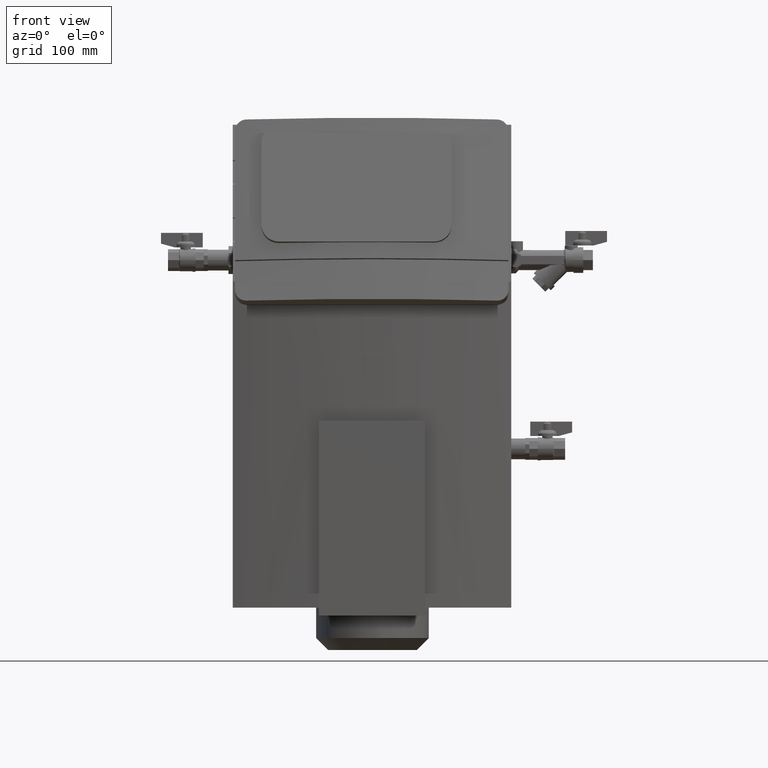
[diagram: clean part render]
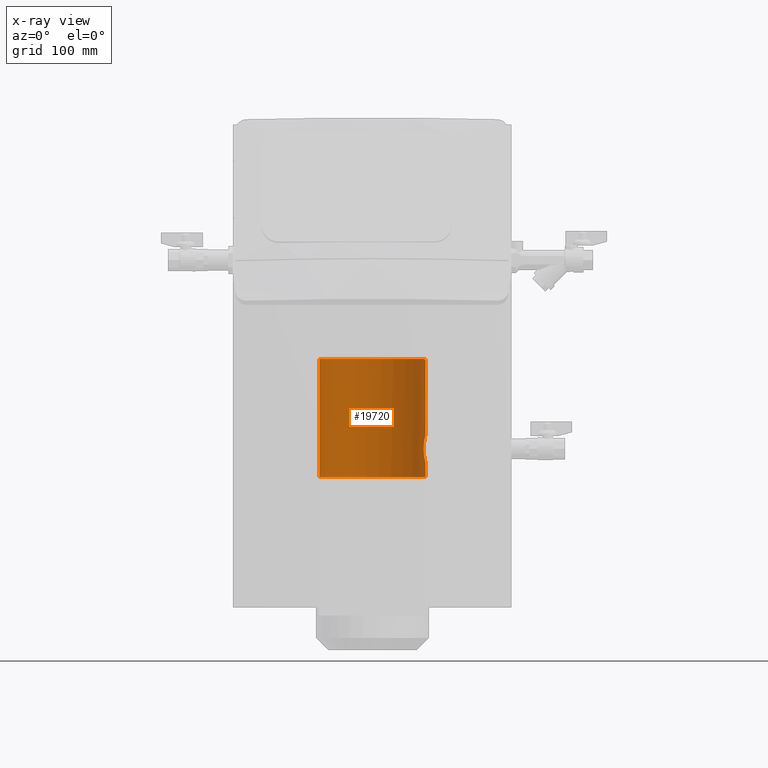
[diagram: x-ray — body ghosted, one internal face saturated and labeled with its STEP entity id]
A machine part, front view, then the same camera in x-ray: the body is ghosted and one INTERNAL B-rep face — a face not visible from any outside direction — is saturated and labeled: STEP entity #19720.
In plain terms, the highlighted cylindrical surface (partial cylindrical patch) has radius 66 mm, axis along (0, 0, 1).
Its self-contained STEP definition (entity closure, byte-faithful):
#19606=CARTESIAN_POINT('',(0.638000047148353,-114.99999999997141,-402.68999999873597));
#19607=DIRECTION('',(1.124746E-032,1.836910E-016,1.0));
#19608=DIRECTION('',(-1.0,0.0,0.0));
#19609=AXIS2_PLACEMENT_3D('',#19606,#19607,#19608);
#19610=CYLINDRICAL_SURFACE('',#19609,66.0);
#19611=CARTESIAN_POINT('',(-65.361999952851647,-114.99999999997138,-281.05857257039327));
#19612=VERTEX_POINT('',#19611);
#19613=CARTESIAN_POINT('',(-65.361999952851647,-114.99999999997141,-427.68999999973596));
#19614=VERTEX_POINT('',#19613);
#19615=CARTESIAN_POINT('',(-65.361999952851647,-114.99999999997138,-281.05857257039327));
#19616=DIRECTION('',(0.0,0.0,-1.0));
#19617=VECTOR('',#19616,146.63142742934269);
#19618=LINE('',#19615,#19617);
#19619=EDGE_CURVE('',#19612,#19614,#19618,.T.);
#19620=ORIENTED_EDGE('',*,*,#19619,.F.);
#19621=CARTESIAN_POINT('',(65.537923005500261,-102.99999999997141,-281.05857257039327));
#19622=VERTEX_POINT('',#19621);
#19623=CARTESIAN_POINT('',(0.638000047148353,-114.99999999997141,-281.05857257039327));
#19624=DIRECTION('',(0.0,0.0,1.0));
#19625=DIRECTION('',(-1.0,0.0,0.0));
#19626=AXIS2_PLACEMENT_3D('',#19623,#19624,#19625);
#19627=CIRCLE('',#19626,66.0);
#19628=EDGE_CURVE('',#19622,#19612,#19627,.T.);
#19629=ORIENTED_EDGE('',*,*,#19628,.F.);
#19630=CARTESIAN_POINT('',(65.537923005500261,-102.99999999997141,-282.18999999873597));
#19631=VERTEX_POINT('',#19630);
#19632=CARTESIAN_POINT('',(65.537923005500261,-102.99999999997141,-281.05857257039327));
#19633=DIRECTION('',(0.0,0.0,-1.0));
#19634=VECTOR('',#19633,1.131427428342704);
#19635=LINE('',#19632,#19634);
#19636=EDGE_CURVE('',#19622,#19631,#19635,.T.);
#19637=ORIENTED_EDGE('',*,*,#19636,.T.);
#19638=CARTESIAN_POINT('',(66.638000047148353,-114.99999999997137,-282.18999999873597));
#19639=VERTEX_POINT('',#19638);
#19640=CARTESIAN_POINT('',(0.638000047148353,-114.99999999997141,-282.18999999873597));
#19641=DIRECTION('',(0.0,0.0,-1.0));
#19642=DIRECTION('',(-1.0,0.0,0.0));
#19643=AXIS2_PLACEMENT_3D('',#19640,#19641,#19642);
#19644=CIRCLE('',#19643,66.0);
#19645=EDGE_CURVE('',#19631,#19639,#19644,.T.);
#19646=ORIENTED_EDGE('',*,*,#19645,.T.);
#19647=CARTESIAN_POINT('',(66.638000047148353,-114.99999999997118,-375.08999999973605));
#19648=VERTEX_POINT('',#19647);
#19649=CARTESIAN_POINT('',(66.638000047148353,-114.99999999997137,-282.18999999873597));
#19650=DIRECTION('',(0.0,0.0,-1.0));
#19651=VECTOR('',#19650,92.90000000100008);
#19652=LINE('',#19649,#19651);
#19653=EDGE_CURVE('',#19639,#19648,#19652,.T.);
#19654=ORIENTED_EDGE('',*,*,#19653,.T.);
#19655=CARTESIAN_POINT('',(65.340725354388724,-101.97858157432307,-380.84927948992538));
#19656=VERTEX_POINT('',#19655);
#19657=CARTESIAN_POINT('',(66.638000047148353,-114.99999999997118,-375.08999999973605));
#19658=CARTESIAN_POINT('',(66.638000047148353,-113.88933749798304,-375.08999999973605));
#19659=CARTESIAN_POINT('',(66.609237911427272,-112.74243437237197,-375.19683076991407));
#19660=CARTESIAN_POINT('',(66.491845653773453,-110.46438022680337,-375.64489144807624));
#19661=CARTESIAN_POINT('',(66.403290094662225,-109.33320296938547,-375.98600748295451));
#19662=CARTESIAN_POINT('',(66.180532586041636,-107.16658489827188,-376.88577398053314));
#19663=CARTESIAN_POINT('',(66.046335278821061,-106.12931899004258,-377.44513920408792));
#19664=CARTESIAN_POINT('',(65.757666694294812,-104.21258533603151,-378.73555815855673));
#19665=CARTESIAN_POINT('',(65.603469932515736,-103.33313788069046,-379.46670342125037));
#19666=CARTESIAN_POINT('',(65.41655942299235,-102.35967679584047,-380.4401645060999));
#19667=CARTESIAN_POINT('',(65.378711104809554,-102.16733071783716,-380.64170921808466));
#19668=CARTESIAN_POINT('',(65.340725354388724,-101.97858157432307,-380.84927948992538));
#19669=B_SPLINE_CURVE_WITH_KNOTS('',3,(#19657,#19658,#19659,#19660,#19661,#19662,#19663,#19664,#19665,#19666,#19667,#19668),.UNSPECIFIED.,.F.,.U.,(4,2,2,2,2,4),(26.658333290513081,29.990320796477427,33.322308302441769,36.654295808406118,39.986283314370453,40.822232534657942),.UNSPECIFIED.);
#19670=EDGE_CURVE('',#19648,#19656,#19669,.T.);
#19671=ORIENTED_EDGE('',*,*,#19670,.T.);
#19672=CARTESIAN_POINT('',(66.638000047148353,-114.99999999997141,-410.28999999973587));
#19673=VERTEX_POINT('',#19672);
#19674=CARTESIAN_POINT('',(65.340725354388724,-101.97858157432307,-380.84927948992538));
#19675=CARTESIAN_POINT('',(65.227277082451792,-101.41486323460305,-381.46920902629211));
#19676=CARTESIAN_POINT('',(65.112583020262036,-100.88356315439029,-382.14318584788646));
#19677=CARTESIAN_POINT('',(64.856603134959869,-99.755043824340021,-383.81948737323057));
#19678=CARTESIAN_POINT('',(64.719519567220004,-99.195751411795129,-384.85664667846925));
#19679=CARTESIAN_POINT('',(64.490909267905408,-98.296065883512085,-387.02305490792889));
#19680=CARTESIAN_POINT('',(64.399433812167672,-97.954958207236189,-388.15413217266735));
#19681=CARTESIAN_POINT('',(64.277957543165712,-97.506867191951926,-390.43215785008545));
#19682=CARTESIAN_POINT('',(64.248062144272581,-97.399999999971726,-391.57913472751454));
#19683=CARTESIAN_POINT('',(64.248062144272581,-97.399999999971726,-393.80086527195738));
#19684=CARTESIAN_POINT('',(64.277957543165712,-97.506867191951926,-394.94784214938647));
#19685=CARTESIAN_POINT('',(64.399433812167672,-97.954958207236189,-397.22586782680457));
#19686=CARTESIAN_POINT('',(64.490909267905408,-98.296065883512085,-398.35694509154303));
#19687=CARTESIAN_POINT('',(64.719519567220232,-99.195751411795129,-400.52335332100313));
#19688=CARTESIAN_POINT('',(64.856603134959869,-99.755043824340021,-401.56051262624135));
#19689=CARTESIAN_POINT('',(65.149292110501619,-101.04539976852476,-403.47720610226554));
#19690=CARTESIAN_POINT('',(65.304597673552053,-101.77656134476211,-404.3567200422932));
#19691=CARTESIAN_POINT('',(65.603469932515736,-103.33313788069091,-405.91329657822155));
#19692=CARTESIAN_POINT('',(65.757666694294812,-104.21258533603151,-406.64444184091519));
#19693=CARTESIAN_POINT('',(66.046335278821061,-106.1293189900428,-407.93486079538445));
#19694=CARTESIAN_POINT('',(66.180532586041636,-107.16658489827233,-408.49422601893878));
#19695=CARTESIAN_POINT('',(66.403290094662225,-109.33320296938592,-409.39399251651741));
#19696=CARTESIAN_POINT('',(66.491845653773453,-110.46438022680405,-409.73510855139568));
#19697=CARTESIAN_POINT('',(66.609237911427272,-112.74243437237266,-410.1831692295583));
#19698=CARTESIAN_POINT('',(66.638000047148353,-113.88933749798349,-410.28999999973587));
#19699=CARTESIAN_POINT('',(66.638000047148353,-114.99999999997141,-410.28999999973587));
#19700=B_SPLINE_CURVE_WITH_KNOTS('',3,(#19674,#19675,#19676,#19677,#19678,#19679,#19680,#19681,#19682,#19683,#19684,#19685,#19686,#19687,#19688,#19689,#19690,#19691,#19692,#19693,#19694,#19695,#19696,#19697,#19698,#19699),.UNSPECIFIED.,.F.,.U.,(4,2,2,2,2,2,2,2,2,2,2,2,4),(4.08222325354801,4.331887913103437,4.665147494769829,4.998407076436221,5.331666658102614,5.664926239769009,5.998185821435401,6.331445403101792,6.664704984768187,6.997903735364619,7.331102485961052,7.664301236557487,7.997499987153923),.UNSPECIFIED.);
#19701=EDGE_CURVE('',#19656,#19673,#19700,.T.);
#19702=ORIENTED_EDGE('',*,*,#19701,.T.);
#19703=CARTESIAN_POINT('',(66.638000047148353,-114.99999999997118,-427.68999999973596));
#19704=VERTEX_POINT('',#19703);
#19705=CARTESIAN_POINT('',(66.638000047148353,-114.99999999997139,-410.28999999973587));
#19706=DIRECTION('',(0.0,0.0,-1.0));
#19707=VECTOR('',#19706,17.400000000000091);
#19708=LINE('',#19705,#19707);
#19709=EDGE_CURVE('',#19673,#19704,#19708,.T.);
#19710=ORIENTED_EDGE('',*,*,#19709,.T.);
#19711=CARTESIAN_POINT('',(0.638000047148353,-114.99999999997118,-427.68999999973596));
#19712=DIRECTION('',(0.0,0.0,-1.0));
#19713=DIRECTION('',(-1.0,0.0,0.0));
#19714=AXIS2_PLACEMENT_3D('',#19711,#19712,#19713);
#19715=CIRCLE('',#19714,66.0);
#19716=EDGE_CURVE('',#19614,#19704,#19715,.T.);
#19717=ORIENTED_EDGE('',*,*,#19716,.F.);
#19718=EDGE_LOOP('',(#19620,#19629,#19637,#19646,#19654,#19671,#19702,#19710,#19717));
#19719=FACE_OUTER_BOUND('',#19718,.T.);
#19720=ADVANCED_FACE('',(#19719),#19610,.T.);